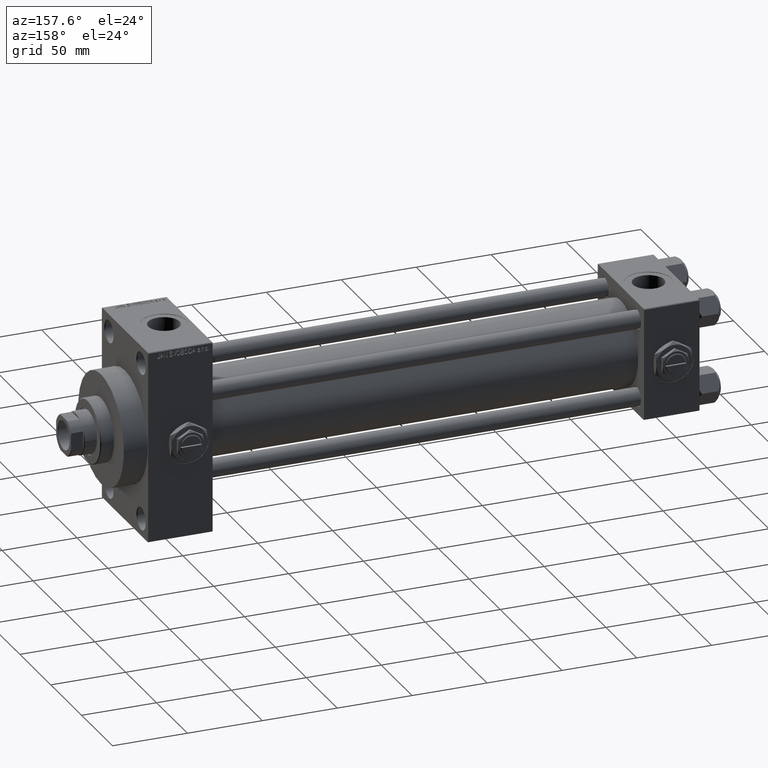
[diagram: clean part render]
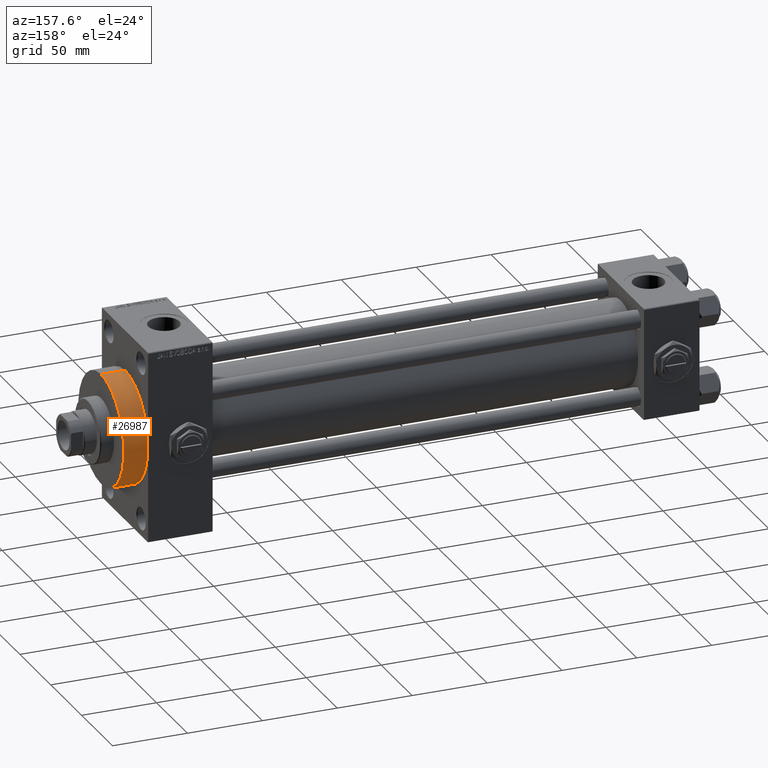
[diagram: same view with one face highlighted and labeled with its STEP entity id]
A machine part, auxiliary view. The second image highlights one B-rep face of the part: STEP entity #26987.
In plain terms, the highlighted cylindrical surface (partial cylindrical patch) has radius 37 mm, axis along (-1, -0, -0).
Its self-contained STEP definition (entity closure, byte-faithful):
#695 = EDGE_CURVE ( 'NONE', #6459, #36688, #46527, .T. ) ;
#4176 = FACE_OUTER_BOUND ( 'NONE', #25415, .T. ) ;
#4863 = DIRECTION ( 'NONE',  ( -1.000000000000000000, -0.000000000000000000, -0.000000000000000000 ) ) ;
#6459 = VERTEX_POINT ( 'NONE', #12001 ) ;
#8500 = CARTESIAN_POINT ( 'NONE',  ( 367.9999999999999432, 0.000000000000000000, 0.000000000000000000 ) ) ;
#8565 = EDGE_CURVE ( 'NONE', #36216, #6459, #8848, .T. ) ;
#8848 = CIRCLE ( 'NONE', #15219, 37.00000000000000000 ) ;
#11608 = DIRECTION ( 'NONE',  ( 0.000000000000000000, 0.000000000000000000, -1.000000000000000000 ) ) ;
#11933 = CARTESIAN_POINT ( 'NONE',  ( 383.9999999999999432, 4.531193156845206793E-15, -37.00000000000000000 ) ) ;
#12001 = CARTESIAN_POINT ( 'NONE',  ( 383.9999999999999432, 0.000000000000000000, 37.00000000000000000 ) ) ;
#12206 = EDGE_CURVE ( 'NONE', #22501, #36688, #28111, .T. ) ;
#12373 = CARTESIAN_POINT ( 'NONE',  ( 383.9999999999999432, 0.000000000000000000, 37.00000000000000000 ) ) ;
#12782 = DIRECTION ( 'NONE',  ( 1.000000000000000000, 0.000000000000000000, 0.000000000000000000 ) ) ;
#13004 = ORIENTED_EDGE ( 'NONE', *, *, #695, .F. ) ;
#13974 = ORIENTED_EDGE ( 'NONE', *, *, #49086, .T. ) ;
#15219 = AXIS2_PLACEMENT_3D ( 'NONE', #30310, #12782, #11608 ) ;
#15244 = DIRECTION ( 'NONE',  ( 0.000000000000000000, 0.000000000000000000, -1.000000000000000000 ) ) ;
#15897 = DIRECTION ( 'NONE',  ( 0.000000000000000000, 0.000000000000000000, 1.000000000000000000 ) ) ;
#18737 = VECTOR ( 'NONE', #4863, 1000.000000000000000 ) ;
#19233 = DIRECTION ( 'NONE',  ( 1.000000000000000000, 0.000000000000000000, 0.000000000000000000 ) ) ;
#19386 = DIRECTION ( 'NONE',  ( -1.000000000000000000, -0.000000000000000000, -0.000000000000000000 ) ) ;
#19515 = CARTESIAN_POINT ( 'NONE',  ( 367.9999999999999432, 4.531193156845206793E-15, -37.00000000000000000 ) ) ;
#22501 = VERTEX_POINT ( 'NONE', #19515 ) ;
#23385 = CYLINDRICAL_SURFACE ( 'NONE', #30764, 37.00000000000000000 ) ;
#25415 = EDGE_LOOP ( 'NONE', ( #38794, #13974, #37410, #13004 ) ) ;
#26626 = CARTESIAN_POINT ( 'NONE',  ( 383.9999999999999432, 0.000000000000000000, 0.000000000000000000 ) ) ;
#26987 = ADVANCED_FACE ( 'NONE', ( #4176 ), #23385, .T. ) ;
#28111 = CIRCLE ( 'NONE', #44805, 37.00000000000000000 ) ;
#30310 = CARTESIAN_POINT ( 'NONE',  ( 383.9999999999999432, 0.000000000000000000, 0.000000000000000000 ) ) ;
#30764 = AXIS2_PLACEMENT_3D ( 'NONE', #26626, #19386, #15897 ) ;
#31044 = LINE ( 'NONE', #46244, #18737 ) ;
#36216 = VERTEX_POINT ( 'NONE', #11933 ) ;
#36688 = VERTEX_POINT ( 'NONE', #39477 ) ;
#37410 = ORIENTED_EDGE ( 'NONE', *, *, #12206, .T. ) ;
#38794 = ORIENTED_EDGE ( 'NONE', *, *, #8565, .F. ) ;
#39477 = CARTESIAN_POINT ( 'NONE',  ( 367.9999999999999432, 0.000000000000000000, 37.00000000000000000 ) ) ;
#44535 = VECTOR ( 'NONE', #46773, 1000.000000000000000 ) ;
#44805 = AXIS2_PLACEMENT_3D ( 'NONE', #8500, #19233, #15244 ) ;
#46244 = CARTESIAN_POINT ( 'NONE',  ( 383.9999999999999432, 4.531193156845206793E-15, -37.00000000000000000 ) ) ;
#46527 = LINE ( 'NONE', #12373, #44535 ) ;
#46773 = DIRECTION ( 'NONE',  ( -1.000000000000000000, -0.000000000000000000, -0.000000000000000000 ) ) ;
#49086 = EDGE_CURVE ( 'NONE', #36216, #22501, #31044, .T. ) ;